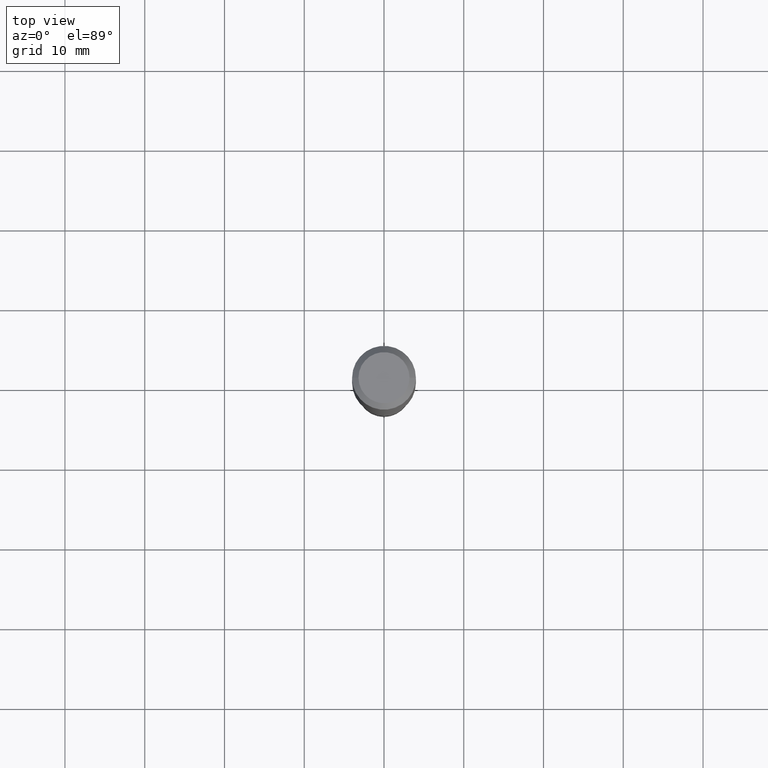
[diagram: clean part render]
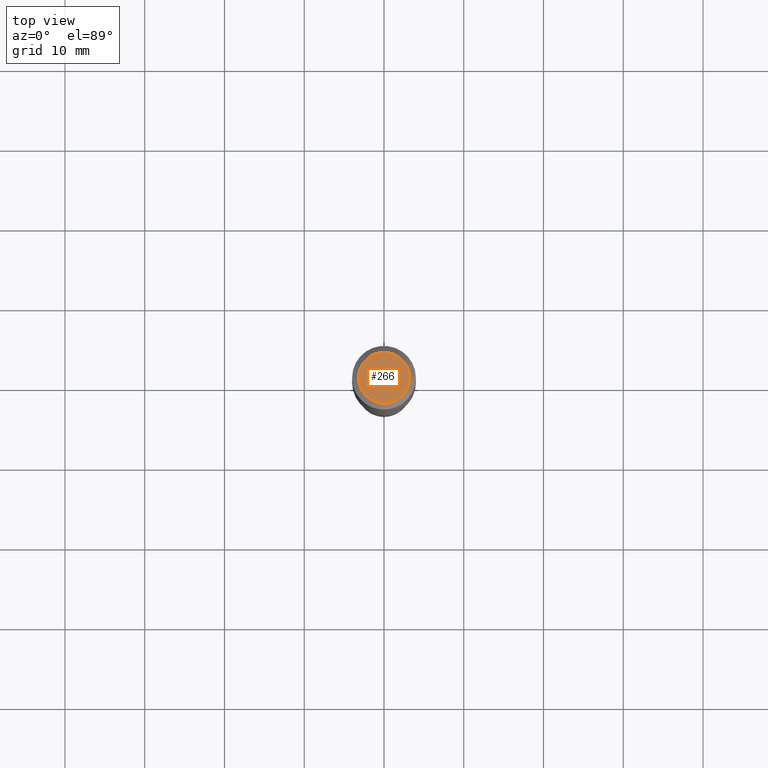
[diagram: same view with one face highlighted and labeled with its STEP entity id]
A machine part, top view. The second image highlights one B-rep face of the part: STEP entity #266.
In plain terms, the highlighted planar face has unit normal (0, -0, -1).
Its self-contained STEP definition (entity closure, byte-faithful):
#61 = CARTESIAN_POINT ( 'NONE',  ( -9.439721640706201686E-47, 1.347742071746726764E-32, 3.860086710912459732E-18 ) ) ;
#92 = FACE_OUTER_BOUND ( 'NONE', #477, .T. ) ;
#95 = DIRECTION ( 'NONE',  ( -2.445468806185136597E-29, 3.491481338843145583E-15, 1.000000000000000000 ) ) ;
#112 = EDGE_CURVE ( 'NONE', #269, #188, #121, .T. ) ;
#121 = CIRCLE ( 'NONE', #422, 0.1260000000000000009 ) ;
#153 = EDGE_CURVE ( 'NONE', #188, #269, #177, .T. ) ;
#174 = CARTESIAN_POINT ( 'NONE',  ( -0.1260000000000000009, 9.348441284752484904E-16, 3.860086710906114178E-18 ) ) ;
#177 = CIRCLE ( 'NONE', #448, 0.1260000000000000009 ) ;
#188 = VERTEX_POINT ( 'NONE', #174 ) ;
#217 = ORIENTED_EDGE ( 'NONE', *, *, #153, .T. ) ;
#256 = AXIS2_PLACEMENT_3D ( 'NONE', #440, #447, #406 ) ;
#266 = ADVANCED_FACE ( 'NONE', ( #92 ), #361, .F. ) ;
#269 = VERTEX_POINT ( 'NONE', #442 ) ;
#302 = ORIENTED_EDGE ( 'NONE', *, *, #112, .T. ) ;
#323 = DIRECTION ( 'NONE',  ( -2.445468806185136597E-29, 3.491481338843145583E-15, 1.000000000000000000 ) ) ;
#361 = PLANE ( 'NONE',  #256 ) ;
#399 = CARTESIAN_POINT ( 'NONE',  ( -9.439721640706201686E-47, 1.347742071746726764E-32, 3.860086710912459732E-18 ) ) ;
#403 = DIRECTION ( 'NONE',  ( 1.000000000000000000, -6.982962677686265922E-15, 4.876281427513067258E-29 ) ) ;
#406 = DIRECTION ( 'NONE',  ( -1.000000000000000000, 6.982962677686265922E-15, -4.876176775795935793E-29 ) ) ;
#422 = AXIS2_PLACEMENT_3D ( 'NONE', #399, #95, #480 ) ;
#440 = CARTESIAN_POINT ( 'NONE',  ( -4.719860820353100843E-47, 6.738710358733633822E-33, 1.930043355456229866E-18 ) ) ;
#442 = CARTESIAN_POINT ( 'NONE',  ( 0.1260000000000000009, -1.027466422270894443E-15, 3.860086710919128072E-18 ) ) ;
#447 = DIRECTION ( 'NONE',  ( 2.438088387897960049E-29, -3.491481338843145188E-15, -1.000000000000000000 ) ) ;
#448 = AXIS2_PLACEMENT_3D ( 'NONE', #61, #323, #403 ) ;
#477 = EDGE_LOOP ( 'NONE', ( #217, #302 ) ) ;
#480 = DIRECTION ( 'NONE',  ( 1.000000000000000000, -6.982962677686265922E-15, 4.876281427513067258E-29 ) ) ;